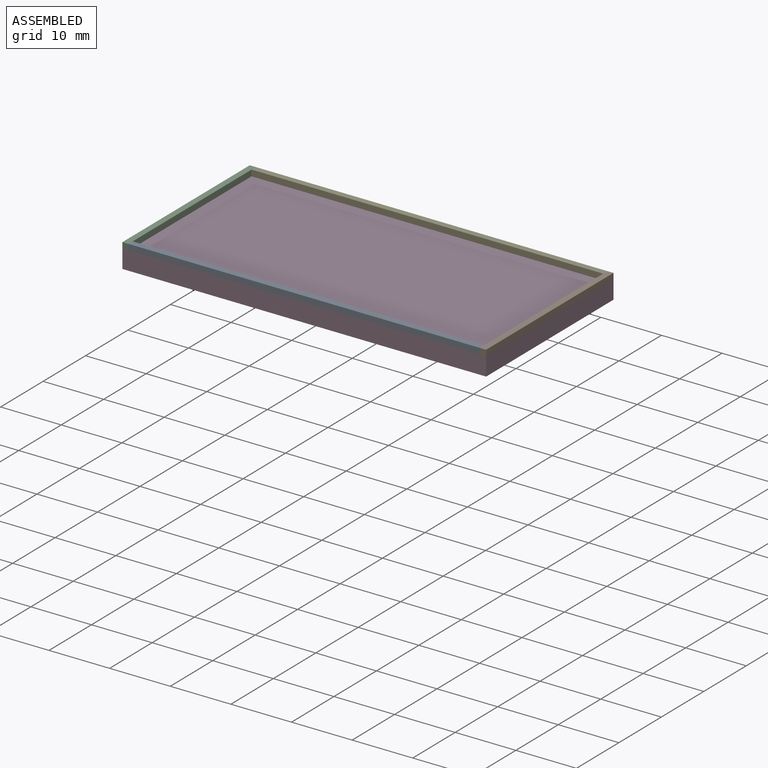
[diagram: assembled view]
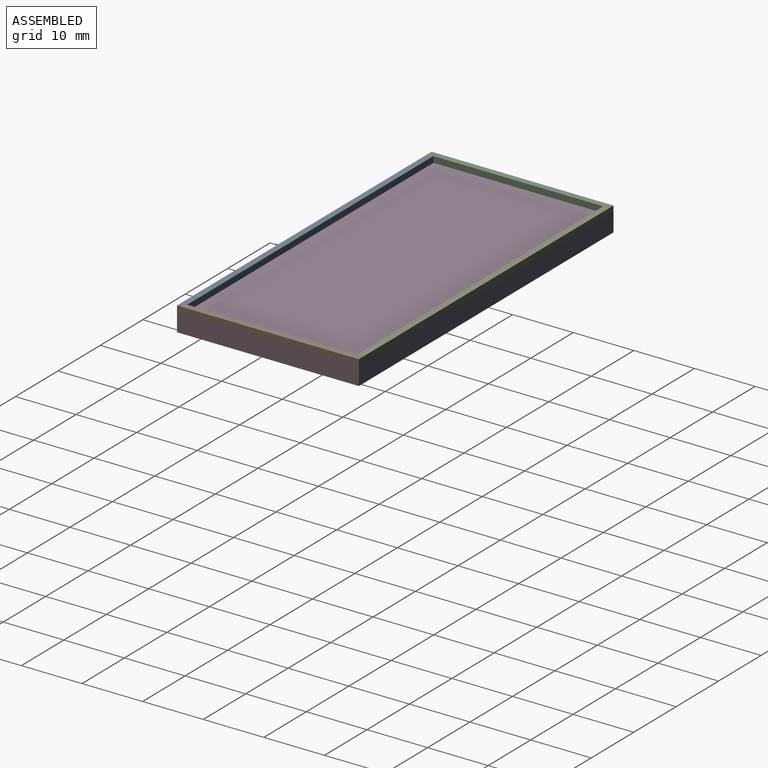
[diagram: assembled view, second angle]
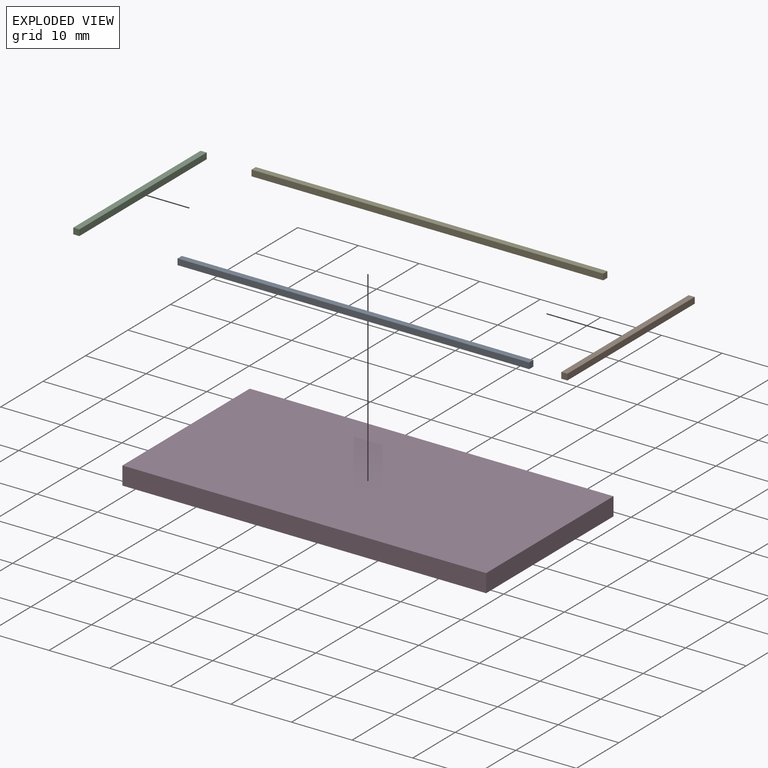
[diagram: exploded view]
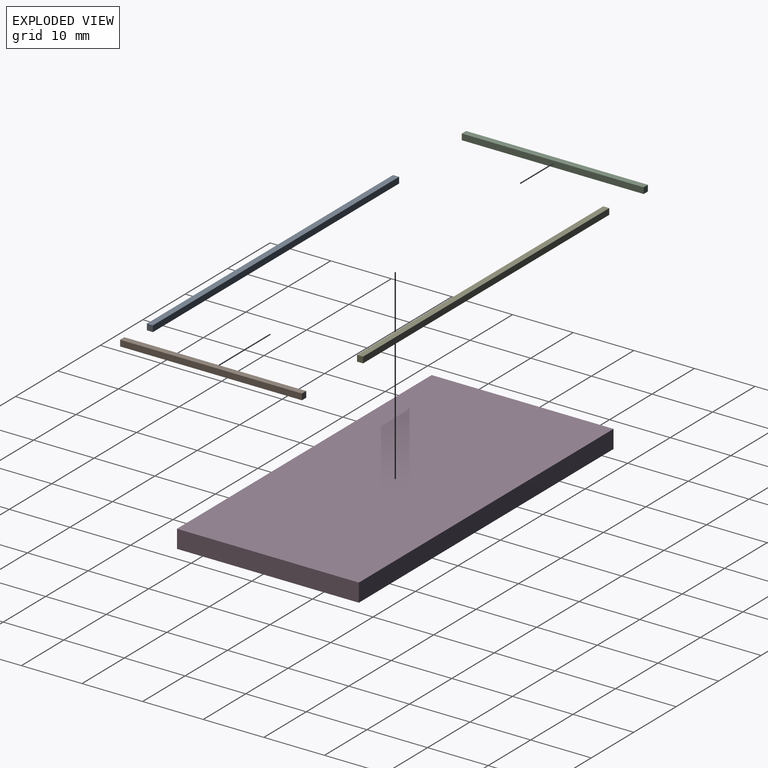
[diagram: exploded view, second angle]
ASSEMBLY  parts=5 mates=4
PART A: 6 faces, bbox 58x1x1 mm
  f0: plane 1x1mm, normal (1,0,0), area 1mm2, adj f1,f3,f4,f5
  f1: plane 58x1mm, normal (0,1,0), area 58mm2, adj f0,f2,f4,f5
  f2: plane 1x1mm, normal (-1,0,0), area 1mm2, adj f1,f3,f4,f5
  f3: plane 58x1mm, normal (0,-1,0), area 58mm2, adj f0,f2,f4,f5
  f4: plane 58x1mm, normal (0,0,1), area 58mm2, adj f0,f1,f2,f3
  f5: plane 58x1mm, normal (0,0,-1), area 58mm2, adj f0,f1,f2,f3
PART B: 6 faces, bbox 1x30x1 mm
  f0: plane 30x1mm, normal (1,0,0), area 30mm2, adj f1,f3,f4,f5
  f1: plane 1x1mm, normal (0,1,0), area 1mm2, adj f0,f2,f4,f5
  f2: plane 30x1mm, normal (-1,0,0), area 30mm2, adj f1,f3,f4,f5
  f3: plane 1x1mm, normal (0,-1,0), area 1mm2, adj f0,f2,f4,f5
  f4: plane 30x1mm, normal (0,0,1), area 30mm2, adj f0,f1,f2,f3
  f5: plane 30x1mm, normal (0,0,-1), area 30mm2, adj f0,f1,f2,f3
PART C: same geometry as B
PART D: 6 faces, bbox 60x30x3 mm
  f0: plane 30x3mm, normal (1,0,0), area 90mm2, adj f1,f3,f4,f5
  f1: plane 60x3mm, normal (0,1,0), area 180mm2, adj f0,f2,f4,f5
  f2: plane 30x3mm, normal (-1,0,0), area 90mm2, adj f1,f3,f4,f5
  f3: plane 60x3mm, normal (0,-1,0), area 180mm2, adj f0,f2,f4,f5
  f4: plane 60x30mm, normal (0,0,1), area 1800mm2, adj f0,f1,f2,f3
  f5: plane 60x30mm, normal (0,0,-1), area 1800mm2, adj f0,f1,f2,f3
PART E: same geometry as A
PLACE A rot(axis=(0,0,-1),180deg) t=(-0.85,-12.43,6.34)mm
PLACE B t=(28.65,2.07,6.34)mm
PLACE C t=(-30.35,2.07,6.34)mm
PLACE D t=(-0.85,2.07,3.34)mm
PLACE E rot(axis=(-1,0,0),90deg) t=(-0.85,16.07,6.84)mm
MATE fastened E.f2 <-> C.f0  axis (-1,0,0) through (-29.85,17.07,7.34)mm
MATE fastened B.f5 <-> D.f4  axis (0,0,-1) through (29.15,17.07,6.34)mm
MATE fastened A.f0 <-> C.f0  axis (-1,0,0) through (-29.85,-12.93,7.34)mm
MATE fastened C.f5 <-> D.f4  axis (0,0,1) through (-30.85,17.07,6.34)mm
